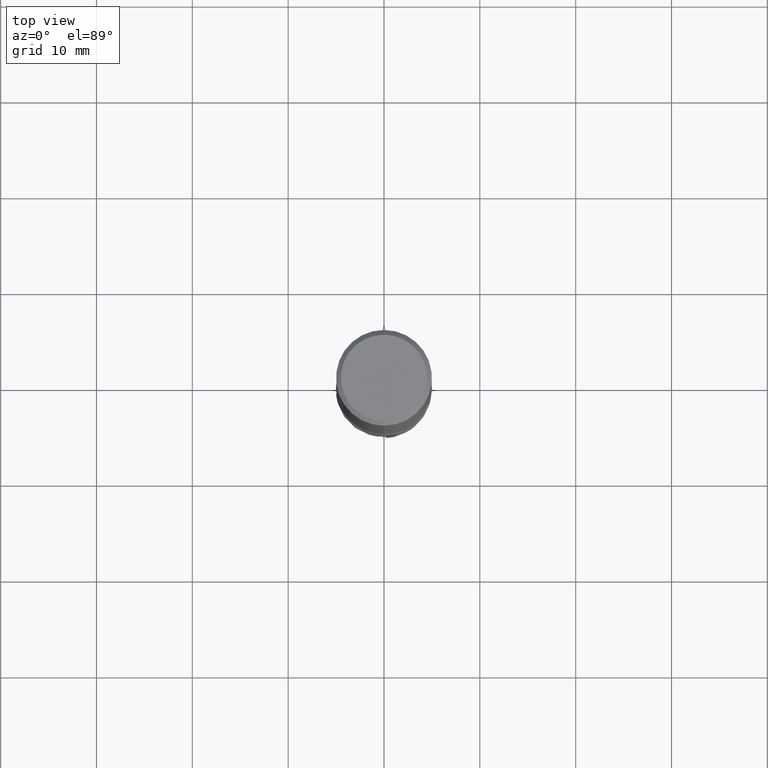
[diagram: clean part render]
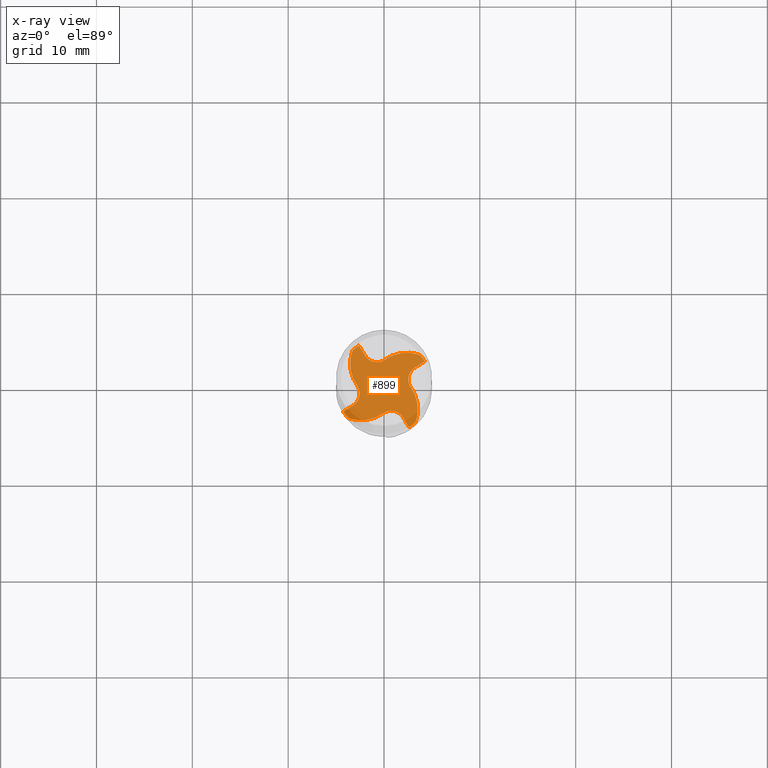
[diagram: x-ray — body ghosted, one internal face saturated and labeled with its STEP entity id]
A machine part, top view, then the same camera in x-ray: the body is ghosted and one INTERNAL B-rep face — a face not visible from any outside direction — is saturated and labeled: STEP entity #899.
In plain terms, the highlighted planar face has unit normal (-0, 0, 1).
Its self-contained STEP definition (entity closure, byte-faithful):
#543=EDGE_CURVE('',#1087,#635,#1578,.T.);
#577=VERTEX_POINT('',#1614);
#617=VERTEX_POINT('',#1659);
#627=EDGE_CURVE('',#1249,#827,#1669,.T.);
#635=VERTEX_POINT('',#1678);
#641=EDGE_CURVE('',#617,#1359,#1684,.T.);
#663=EDGE_CURVE('',#983,#1511,#1709,.T.);
#673=EDGE_CURVE('',#1009,#823,#1720,.T.);
#727=VERTEX_POINT('',#1779);
#733=EDGE_CURVE('',#743,#957,#1785,.T.);
#743=VERTEX_POINT('',#1796);
#767=VERTEX_POINT('',#1821);
#777=EDGE_CURVE('',#635,#1065,#1831,.T.);
#823=VERTEX_POINT('',#1883);
#827=VERTEX_POINT('',#1888);
#899=ADVANCED_FACE('',(#1964),#1965,.T.);
#915=EDGE_CURVE('',#577,#767,#1982,.T.);
#921=EDGE_CURVE('',#945,#1453,#1988,.T.);
#945=VERTEX_POINT('',#2013);
#957=VERTEX_POINT('',#2025);
#983=VERTEX_POINT('',#2054);
#1005=EDGE_CURVE('',#1453,#617,#2077,.T.);
#1009=VERTEX_POINT('',#2081);
#1053=VERTEX_POINT('',#2131);
#1065=VERTEX_POINT('',#2144);
#1067=EDGE_CURVE('',#823,#1143,#2146,.T.);
#1077=VERTEX_POINT('',#2157);
#1087=VERTEX_POINT('',#2167);
#1101=EDGE_CURVE('',#1511,#1295,#2184,.T.);
#1113=EDGE_CURVE('',#1197,#1399,#2198,.T.);
#1117=EDGE_CURVE('',#1077,#1227,#2202,.T.);
#1127=EDGE_CURVE('',#743,#1469,#2213,.T.);
#1135=EDGE_CURVE('',#1467,#945,#2222,.T.);
#1143=VERTEX_POINT('',#2231);
#1169=EDGE_CURVE('',#1053,#1009,#2260,.T.);
#1197=VERTEX_POINT('',#2289);
#1201=EDGE_CURVE('',#827,#1197,#2293,.T.);
#1227=VERTEX_POINT('',#2323);
#1249=VERTEX_POINT('',#2346);
#1295=VERTEX_POINT('',#2399);
#1297=EDGE_CURVE('',#1359,#1077,#2401,.T.);
#1359=VERTEX_POINT('',#2469);
#1399=VERTEX_POINT('',#2515);
#1401=EDGE_CURVE('',#1249,#1295,#2517,.T.);
#1427=EDGE_CURVE('',#1399,#1479,#2547,.T.);
#1435=EDGE_CURVE('',#1467,#767,#2555,.T.);
#1453=VERTEX_POINT('',#2575);
#1467=VERTEX_POINT('',#2589);
#1469=VERTEX_POINT('',#2591);
#1479=VERTEX_POINT('',#2602);
#1495=EDGE_CURVE('',#1053,#1227,#2619,.T.);
#1497=EDGE_CURVE('',#957,#1087,#2621,.T.);
#1511=VERTEX_POINT('',#2636);
#1521=EDGE_CURVE('',#1065,#577,#2646,.T.);
#1539=EDGE_CURVE('',#1479,#727,#2666,.T.);
#1547=EDGE_CURVE('',#1143,#983,#2675,.T.);
#1549=EDGE_CURVE('',#727,#1469,#2677,.T.);
#1578=B_SPLINE_CURVE_WITH_KNOTS('',3,(#2746,#2747,#2748,#2749,#2750,#2751,#2752,#2753),.UNSPECIFIED.,.F.,.F.,(4,2,2,4),(0.0,1.55395800995068,2.99564373161454,4.43728701716914),.UNSPECIFIED.);
#1614=CARTESIAN_POINT('',(3.21236791552506,1.96059927409611,-53.0));
#1659=CARTESIAN_POINT('',(-0.00705434222565904,2.73875652295535,-53.0));
#1669=B_SPLINE_CURVE_WITH_KNOTS('',3,(#3777,#3778,#3779,#3780,#3781,#3782,#3783,#3784),.UNSPECIFIED.,.F.,.F.,(4,2,2,4),(0.0,1.55395800995068,2.99564373161454,4.43728701716914),.UNSPECIFIED.);
#1678=CARTESIAN_POINT('',(2.73875652295535,0.00705434222565993,-53.0));
#1684=B_SPLINE_CURVE_WITH_KNOTS('',3,(#3843,#3844,#3845,#3846,#3847,#3848),.UNSPECIFIED.,.F.,.F.,(4,2,4),(0.0,0.00794720610496246,0.0149642889753079),.UNSPECIFIED.);
#1709=B_SPLINE_CURVE_WITH_KNOTS('',3,(#4196,#4197,#4198,#4199,#4200,#4201,#4202,#4203,#4204,#4205),.UNSPECIFIED.,.F.,.F.,(4,2,2,2,4),(0.0,0.561652873009568,1.12329456949985,1.68488858534868,2.24664184924053),.UNSPECIFIED.);
#1720=B_SPLINE_CURVE_WITH_KNOTS('',3,(#4220,#4221,#4222,#4223,#4224,#4225,#4226,#4227),.UNSPECIFIED.,.F.,.F.,(4,2,2,4),(0.0,1.55395800995072,2.99564373161464,4.43728701716926),.UNSPECIFIED.);
#1779=CARTESIAN_POINT('',(1.96059927409612,-3.21236791552506,-53.0));
#1785=B_SPLINE_CURVE_WITH_KNOTS('',3,(#5132,#5133,#5134,#5135,#5136,#5137,#5138,#5139),.UNSPECIFIED.,.F.,.F.,(4,2,2,4),(0.0,1.55395800995068,2.99564373161454,4.43728701716914),.UNSPECIFIED.);
#1796=CARTESIAN_POINT('',(3.2679776335851,-3.78408802703998,-53.0));
#1821=CARTESIAN_POINT('',(4.26300903754209,2.61261439095677,-53.0));
#1831=B_SPLINE_CURVE_WITH_KNOTS('',3,(#5258,#5259,#5260,#5261,#5262,#5263),.UNSPECIFIED.,.F.,.F.,(4,2,4),(0.0,0.00731125533487543,0.014622524768328),.UNSPECIFIED.);
#1883=CARTESIAN_POINT('',(-3.51485827910795,2.68852362562381,-53.0));
#1888=CARTESIAN_POINT('',(-3.75916761069034,-3.27735574731751,-53.0));
#1964=FACE_OUTER_BOUND('',#6266,.T.);
#1965=PLANE('',#6267);
#1982=B_SPLINE_CURVE_WITH_KNOTS('',3,(#6309,#6310,#6311,#6312,#6313,#6314),.UNSPECIFIED.,.F.,.F.,(4,2,4),(0.0,0.718749972684841,1.43749994537414),.UNSPECIFIED.);
#1988=B_SPLINE_CURVE_WITH_KNOTS('',3,(#6363,#6364,#6365,#6366,#6367,#6368,#6369,#6370),.UNSPECIFIED.,.F.,.F.,(4,2,2,4),(0.0,1.55395800995067,2.9956437316145,4.43728701716911),.UNSPECIFIED.);
#2013=CARTESIAN_POINT('',(3.75916761069033,3.27735574731752,-53.0));
#2025=CARTESIAN_POINT('',(3.27735574731751,-3.75916761069033,-53.0));
#2054=CARTESIAN_POINT('',(-2.73326060225743,-0.00700924184387275,-53.0));
#2077=B_SPLINE_CURVE_WITH_KNOTS('',3,(#6919,#6920,#6921,#6922,#6923,#6924,#6925,#6926),.UNSPECIFIED.,.F.,.F.,(4,2,2,4),(0.0,1.55395800995067,2.9956437316145,4.43728701716911),.UNSPECIFIED.);
#2081=CARTESIAN_POINT('',(-3.27735574731752,3.75916761069031,-53.0));
#2131=CARTESIAN_POINT('',(-3.26797763358509,3.78408802703999,-53.0));
#2144=CARTESIAN_POINT('',(2.73326060225743,0.00700924184387386,-53.0));
#2146=B_SPLINE_CURVE_WITH_KNOTS('',3,(#7376,#7377,#7378,#7379,#7380,#7381,#7382,#7383),.UNSPECIFIED.,.F.,.F.,(4,2,2,4),(0.0,1.55395800995072,2.99564373161464,4.43728701716926),.UNSPECIFIED.);
#2157=CARTESIAN_POINT('',(-1.96059927409612,3.21236791552506,-53.0));
#2167=CARTESIAN_POINT('',(3.51485827910795,-2.68852362562367,-53.0));
#2184=B_SPLINE_CURVE_WITH_KNOTS('',3,(#7711,#7712,#7713,#7714,#7715,#7716),.UNSPECIFIED.,.F.,.F.,(4,2,4),(0.0,0.718749972684841,1.43749994537414),.UNSPECIFIED.);
#2198=B_SPLINE_CURVE_WITH_KNOTS('',3,(#7735,#7736,#7737,#7738,#7739,#7740,#7741,#7742),.UNSPECIFIED.,.F.,.F.,(4,2,2,4),(0.0,1.55395800995068,2.99564373161454,4.43728701716914),.UNSPECIFIED.);
#2202=B_SPLINE_CURVE_WITH_KNOTS('',3,(#7747,#7748,#7749,#7750,#7751,#7752),.UNSPECIFIED.,.F.,.F.,(4,2,4),(0.0,0.718749972684841,1.43749994537414),.UNSPECIFIED.);
#2213=CIRCLE('',#7765,4.9999);
#2222=B_SPLINE_CURVE_WITH_KNOTS('',3,(#7793,#7794,#7795,#7796,#7797,#7798,#7799,#7800),.UNSPECIFIED.,.F.,.F.,(4,2,2,4),(0.0,1.55395800995067,2.9956437316145,4.43728701716911),.UNSPECIFIED.);
#2231=CARTESIAN_POINT('',(-2.73875652295535,-0.00705434222565993,-53.0));
#2260=B_SPLINE_CURVE_WITH_KNOTS('',3,(#7868,#7869,#7870,#7871,#7872,#7873,#7874,#7875),.UNSPECIFIED.,.F.,.F.,(4,2,2,4),(0.0,1.55395800995072,2.99564373161464,4.43728701716926),.UNSPECIFIED.);
#2289=CARTESIAN_POINT('',(-2.68852362562315,-3.514858279108,-53.0));
#2293=B_SPLINE_CURVE_WITH_KNOTS('',3,(#8073,#8074,#8075,#8076,#8077,#8078,#8079,#8080),.UNSPECIFIED.,.F.,.F.,(4,2,2,4),(0.0,1.55395800995068,2.99564373161454,4.43728701716914),.UNSPECIFIED.);
#2323=CARTESIAN_POINT('',(-2.61261439095677,4.26300903754209,-53.0));
#2346=CARTESIAN_POINT('',(-3.78408802703998,-3.2679776335851,-53.0));
#2399=CARTESIAN_POINT('',(-4.2630090375421,-2.61261439095677,-53.0));
#2401=B_SPLINE_CURVE_WITH_KNOTS('',3,(#8942,#8943,#8944,#8945,#8946,#8947,#8948,#8949,#8950,#8951),.UNSPECIFIED.,.F.,.F.,(4,2,2,2,4),(0.0,0.561652843200112,1.12329462075066,1.68488878012172,2.24805447274018),.UNSPECIFIED.);
#2469=CARTESIAN_POINT('',(-0.00700924184387308,2.73326060225744,-53.0));
#2515=CARTESIAN_POINT('',(0.00705434222565993,-2.73875652295535,-53.0));
#2517=CIRCLE('',#9727,4.9999);
#2547=B_SPLINE_CURVE_WITH_KNOTS('',3,(#10628,#10629,#10630,#10631,#10632,#10633),.UNSPECIFIED.,.F.,.F.,(4,2,4),(0.0,0.00731123272665723,0.0146225932187618),.UNSPECIFIED.);
#2555=CIRCLE('',#10696,4.9999);
#2575=CARTESIAN_POINT('',(2.68852362562028,3.51485827910822,-53.0));
#2589=CARTESIAN_POINT('',(3.78408802703999,3.26797763358509,-53.0));
#2591=CARTESIAN_POINT('',(2.61261439095677,-4.2630090375421,-53.0));
#2602=CARTESIAN_POINT('',(0.00700924184387342,-2.73326060225743,-53.0));
#2619=CIRCLE('',#10858,4.9999);
#2621=B_SPLINE_CURVE_WITH_KNOTS('',3,(#10861,#10862,#10863,#10864,#10865,#10866,#10867,#10868),.UNSPECIFIED.,.F.,.F.,(4,2,2,4),(0.0,1.55395800995068,2.99564373161454,4.43728701716914),.UNSPECIFIED.);
#2636=CARTESIAN_POINT('',(-3.21236791552506,-1.96059927409612,-53.0));
#2646=B_SPLINE_CURVE_WITH_KNOTS('',3,(#10968,#10969,#10970,#10971,#10972,#10973,#10974,#10975,#10976,#10977),.UNSPECIFIED.,.F.,.F.,(4,2,2,2,4),(0.0,0.561652873009415,1.12329456950014,1.6848885853497,2.24664185665878),.UNSPECIFIED.);
#2666=B_SPLINE_CURVE_WITH_KNOTS('',3,(#11061,#11062,#11063,#11064,#11065,#11066,#11067,#11068,#11069,#11070),.UNSPECIFIED.,.F.,.F.,(4,2,2,2,4),(0.0,0.561652873009511,1.12329456950017,1.68488858534957,2.24664185425884),.UNSPECIFIED.);
#2675=B_SPLINE_CURVE_WITH_KNOTS('',3,(#11096,#11097,#11098,#11099,#11100,#11101),.UNSPECIFIED.,.F.,.F.,(4,2,4),(0.0,0.0073113960086642,0.0146229443438771),.UNSPECIFIED.);
#2677=B_SPLINE_CURVE_WITH_KNOTS('',3,(#11104,#11105,#11106,#11107,#11108,#11109),.UNSPECIFIED.,.F.,.F.,(4,2,4),(0.0,0.718749972684842,1.43749994537414),.UNSPECIFIED.);
#2746=CARTESIAN_POINT('',(3.09328565480652,-4.17795578713016,-53.0));
#2747=CARTESIAN_POINT('',(3.32863304226522,-3.71652203581956,-53.0));
#2748=CARTESIAN_POINT('',(3.47160343900252,-3.21353291675499,-53.0));
#2749=CARTESIAN_POINT('',(3.55361305107734,-2.21835913436387,-53.0));
#2750=CARTESIAN_POINT('',(3.50596477395292,-1.73621024299965,-53.0));
#2751=CARTESIAN_POINT('',(3.24106465959036,-0.812328196172821,-53.0));
#2752=CARTESIAN_POINT('',(3.02599776105415,-0.378196692979854,-53.0));
#2753=CARTESIAN_POINT('',(2.73875652295535,0.00705434222566381,-53.0));
#3777=CARTESIAN_POINT('',(-4.17795578713016,-3.09328565480652,-53.0));
#3778=CARTESIAN_POINT('',(-3.71652203581956,-3.32863304226522,-53.0));
#3779=CARTESIAN_POINT('',(-3.21353291675499,-3.47160343900252,-53.0));
#3780=CARTESIAN_POINT('',(-2.21835913436387,-3.55361305107734,-53.0));
#3781=CARTESIAN_POINT('',(-1.73621024299965,-3.50596477395292,-53.0));
#3782=CARTESIAN_POINT('',(-0.812328196172821,-3.24106465959036,-53.0));
#3783=CARTESIAN_POINT('',(-0.378196692979854,-3.02599776105415,-53.0));
#3784=CARTESIAN_POINT('',(0.00705434222566381,-2.73875652295535,-53.0));
#3843=CARTESIAN_POINT('',(-0.00705434233064239,2.73875652295476,-52.9999999999004));
#3844=CARTESIAN_POINT('',(-0.00703260408063118,2.73610754344662,-52.9999999999004));
#3845=CARTESIAN_POINT('',(-0.00701086643974124,2.73345858833782,-52.9999999999004));
#3846=CARTESIAN_POINT('',(-0.00696993605271768,2.72847070589869,-52.9999999999004));
#3847=CARTESIAN_POINT('',(-0.0069468369007759,2.72565574487025,-53.0));
#3848=CARTESIAN_POINT('',(-0.00692391849234675,2.72286274347792,-53.0));
#4196=CARTESIAN_POINT('',(-2.73930492009428,0.00311115264046641,-53.0));
#4197=CARTESIAN_POINT('',(-2.64265037635078,-0.157227046289006,-53.0));
#4198=CARTESIAN_POINT('',(-2.57823701126731,-0.334911959245153,-53.0));
#4199=CARTESIAN_POINT('',(-2.52114648856455,-0.704965462275667,-53.0));
#4200=CARTESIAN_POINT('',(-2.52901348019747,-0.893797448199707,-53.0));
#4201=CARTESIAN_POINT('',(-2.61668761863336,-1.25779902745857,-53.0));
#4202=CARTESIAN_POINT('',(-2.69565059423472,-1.42949010858479,-53.0));
#4203=CARTESIAN_POINT('',(-2.91498031582104,-1.73297948899149,-53.0));
#4204=CARTESIAN_POINT('',(-3.05326538237736,-1.86186180967467,-53.0));
#4205=CARTESIAN_POINT('',(-3.21236791552506,-1.96059927409612,-53.0));
#4220=CARTESIAN_POINT('',(-3.09328565480652,4.17795578713016,-53.0));
#4221=CARTESIAN_POINT('',(-3.32863304226522,3.71652203581955,-53.0));
#4222=CARTESIAN_POINT('',(-3.47160343900252,3.21353291675498,-53.0));
#4223=CARTESIAN_POINT('',(-3.55361305107733,2.21835913436387,-53.0));
#4224=CARTESIAN_POINT('',(-3.50596477395292,1.73621024299966,-53.0));
#4225=CARTESIAN_POINT('',(-3.24106465959036,0.812328196172827,-53.0));
#4226=CARTESIAN_POINT('',(-3.02599776105416,0.378196692979864,-53.0));
#4227=CARTESIAN_POINT('',(-2.73875652295535,-0.00705434222566426,-53.0));
#5132=CARTESIAN_POINT('',(3.09328565480652,-4.17795578713016,-53.0));
#5133=CARTESIAN_POINT('',(3.32863304226522,-3.71652203581956,-53.0));
#5134=CARTESIAN_POINT('',(3.47160343900252,-3.21353291675499,-53.0));
#5135=CARTESIAN_POINT('',(3.55361305107734,-2.21835913436387,-53.0));
#5136=CARTESIAN_POINT('',(3.50596477395292,-1.73621024299965,-53.0));
#5137=CARTESIAN_POINT('',(3.24106465959036,-0.812328196172821,-53.0));
#5138=CARTESIAN_POINT('',(3.02599776105415,-0.378196692979854,-53.0));
#5139=CARTESIAN_POINT('',(2.73875652295535,0.00705434222566381,-53.0));
#5258=CARTESIAN_POINT('',(2.73875652295487,0.00705434228479063,-53.0));
#5259=CARTESIAN_POINT('',(2.73631951989932,0.00703434357153945,-53.0));
#5260=CARTESIAN_POINT('',(2.73388252190082,0.00701434524585892,-53.0));
#5261=CARTESIAN_POINT('',(2.72900852120078,0.0069743492480423,-53.0));
#5262=CARTESIAN_POINT('',(2.72657152301573,0.00695435161297081,-53.0));
#5263=CARTESIAN_POINT('',(2.72413452482911,0.00693435432395562,-53.0));
#6266=EDGE_LOOP('',(#11512,#11513,#11514,#11515,#11516,#11517,#11518,#11519,#11520,#11521,#11522,#11523,#11524,#11525,#11526,#11527,#11528,#11529,#11530,#11531,#11532,#11533,#11534,#11535,#11536,#11537,#11538,#11539));
#6267=AXIS2_PLACEMENT_3D('',#11540,#11541,#11542);
#6309=CARTESIAN_POINT('',(3.21236791547233,1.96059927418108,-53.0));
#6310=CARTESIAN_POINT('',(3.41593660679313,2.08693199821651,-53.0));
#6311=CARTESIAN_POINT('',(3.61950541979492,2.21326452617912,-53.0));
#6312=CARTESIAN_POINT('',(4.02664328916154,2.46592918995726,-53.0));
#6313=CARTESIAN_POINT('',(4.23021234552656,2.59226132577292,-53.0));
#6314=CARTESIAN_POINT('',(4.43378152357256,2.71859326551367,-53.0));
#6363=CARTESIAN_POINT('',(4.17795578713016,3.09328565480652,-53.0));
#6364=CARTESIAN_POINT('',(3.71652203581956,3.32863304226521,-53.0));
#6365=CARTESIAN_POINT('',(3.21353291675499,3.47160343900252,-53.0));
#6366=CARTESIAN_POINT('',(2.21835913436387,3.55361305107734,-53.0));
#6367=CARTESIAN_POINT('',(1.73621024299965,3.50596477395292,-53.0));
#6368=CARTESIAN_POINT('',(0.812328196172809,3.24106465959036,-53.0));
#6369=CARTESIAN_POINT('',(0.378196692979836,3.02599776105413,-53.0));
#6370=CARTESIAN_POINT('',(-0.00705434222565904,2.73875652295535,-53.0));
#6919=CARTESIAN_POINT('',(4.17795578713016,3.09328565480652,-53.0));
#6920=CARTESIAN_POINT('',(3.71652203581956,3.32863304226521,-53.0));
#6921=CARTESIAN_POINT('',(3.21353291675499,3.47160343900252,-53.0));
#6922=CARTESIAN_POINT('',(2.21835913436387,3.55361305107734,-53.0));
#6923=CARTESIAN_POINT('',(1.73621024299965,3.50596477395292,-53.0));
#6924=CARTESIAN_POINT('',(0.812328196172809,3.24106465959036,-53.0));
#6925=CARTESIAN_POINT('',(0.378196692979836,3.02599776105413,-53.0));
#6926=CARTESIAN_POINT('',(-0.00705434222565904,2.73875652295535,-53.0));
#7376=CARTESIAN_POINT('',(-3.09328565480652,4.17795578713016,-53.0));
#7377=CARTESIAN_POINT('',(-3.32863304226522,3.71652203581955,-53.0));
#7378=CARTESIAN_POINT('',(-3.47160343900252,3.21353291675498,-53.0));
#7379=CARTESIAN_POINT('',(-3.55361305107733,2.21835913436387,-53.0));
#7380=CARTESIAN_POINT('',(-3.50596477395292,1.73621024299966,-53.0));
#7381=CARTESIAN_POINT('',(-3.24106465959036,0.812328196172827,-53.0));
#7382=CARTESIAN_POINT('',(-3.02599776105416,0.378196692979864,-53.0));
#7383=CARTESIAN_POINT('',(-2.73875652295535,-0.00705434222566426,-53.0));
#7711=CARTESIAN_POINT('',(-3.21236791547233,-1.96059927418109,-53.0));
#7712=CARTESIAN_POINT('',(-3.41593660679313,-2.08693199821651,-53.0));
#7713=CARTESIAN_POINT('',(-3.61950541979492,-2.21326452617912,-53.0));
#7714=CARTESIAN_POINT('',(-4.02664328916154,-2.46592918995726,-53.0));
#7715=CARTESIAN_POINT('',(-4.23021234552656,-2.59226132577292,-53.0));
#7716=CARTESIAN_POINT('',(-4.43378152357256,-2.71859326551368,-53.0));
#7735=CARTESIAN_POINT('',(-4.17795578713016,-3.09328565480652,-53.0));
#7736=CARTESIAN_POINT('',(-3.71652203581956,-3.32863304226522,-53.0));
#7737=CARTESIAN_POINT('',(-3.21353291675499,-3.47160343900252,-53.0));
#7738=CARTESIAN_POINT('',(-2.21835913436387,-3.55361305107734,-53.0));
#7739=CARTESIAN_POINT('',(-1.73621024299965,-3.50596477395292,-53.0));
#7740=CARTESIAN_POINT('',(-0.812328196172821,-3.24106465959036,-53.0));
#7741=CARTESIAN_POINT('',(-0.378196692979854,-3.02599776105415,-53.0));
#7742=CARTESIAN_POINT('',(0.00705434222566381,-2.73875652295535,-53.0));
#7747=CARTESIAN_POINT('',(-1.96059927418109,3.21236791547233,-53.0));
#7748=CARTESIAN_POINT('',(-2.08693199821651,3.41593660679313,-53.0));
#7749=CARTESIAN_POINT('',(-2.21326452617912,3.61950541979492,-53.0));
#7750=CARTESIAN_POINT('',(-2.46592918995726,4.02664328916154,-53.0));
#7751=CARTESIAN_POINT('',(-2.59226132577292,4.23021234552656,-53.0));
#7752=CARTESIAN_POINT('',(-2.71859326551368,4.43378152357256,-53.0));
#7765=AXIS2_PLACEMENT_3D('',#11769,#11770,#11771);
#7793=CARTESIAN_POINT('',(4.17795578713016,3.09328565480652,-53.0));
#7794=CARTESIAN_POINT('',(3.71652203581956,3.32863304226521,-53.0));
#7795=CARTESIAN_POINT('',(3.21353291675499,3.47160343900252,-53.0));
#7796=CARTESIAN_POINT('',(2.21835913436387,3.55361305107734,-53.0));
#7797=CARTESIAN_POINT('',(1.73621024299965,3.50596477395292,-53.0));
#7798=CARTESIAN_POINT('',(0.812328196172809,3.24106465959036,-53.0));
#7799=CARTESIAN_POINT('',(0.378196692979836,3.02599776105413,-53.0));
#7800=CARTESIAN_POINT('',(-0.00705434222565904,2.73875652295535,-53.0));
#7868=CARTESIAN_POINT('',(-3.09328565480652,4.17795578713016,-53.0));
#7869=CARTESIAN_POINT('',(-3.32863304226522,3.71652203581955,-53.0));
#7870=CARTESIAN_POINT('',(-3.47160343900252,3.21353291675498,-53.0));
#7871=CARTESIAN_POINT('',(-3.55361305107733,2.21835913436387,-53.0));
#7872=CARTESIAN_POINT('',(-3.50596477395292,1.73621024299966,-53.0));
#7873=CARTESIAN_POINT('',(-3.24106465959036,0.812328196172827,-53.0));
#7874=CARTESIAN_POINT('',(-3.02599776105416,0.378196692979864,-53.0));
#7875=CARTESIAN_POINT('',(-2.73875652295535,-0.00705434222566426,-53.0));
#8073=CARTESIAN_POINT('',(-4.17795578713016,-3.09328565480652,-53.0));
#8074=CARTESIAN_POINT('',(-3.71652203581956,-3.32863304226522,-53.0));
#8075=CARTESIAN_POINT('',(-3.21353291675499,-3.47160343900252,-53.0));
#8076=CARTESIAN_POINT('',(-2.21835913436387,-3.55361305107734,-53.0));
#8077=CARTESIAN_POINT('',(-1.73621024299965,-3.50596477395292,-53.0));
#8078=CARTESIAN_POINT('',(-0.812328196172821,-3.24106465959036,-53.0));
#8079=CARTESIAN_POINT('',(-0.378196692979854,-3.02599776105415,-53.0));
#8080=CARTESIAN_POINT('',(0.00705434222566381,-2.73875652295535,-53.0));
#8942=CARTESIAN_POINT('',(0.00430927868239661,2.74002796567315,-53.0));
#8943=CARTESIAN_POINT('',(-0.155934760469763,2.6432174132636,-53.0));
#8944=CARTESIAN_POINT('',(-0.333556886075702,2.57863113939693,-53.0));
#8945=CARTESIAN_POINT('',(-0.703554662992393,2.52118045115068,-53.0));
#8946=CARTESIAN_POINT('',(-0.892394246213419,2.52886364183619,-53.0));
#8947=CARTESIAN_POINT('',(-1.25648106674695,2.61618344929279,-53.0));
#8948=CARTESIAN_POINT('',(-1.4282489732101,2.6949792897424,-53.0));
#8949=CARTESIAN_POINT('',(-1.73233359642235,2.91428892923695,-53.0));
#8950=CARTESIAN_POINT('',(-1.86161355224002,3.05286534793291,-53.0));
#8951=CARTESIAN_POINT('',(-1.96059927409612,3.21236791552506,-53.0));
#9727=AXIS2_PLACEMENT_3D('',#12117,#12118,#12119);
#10628=CARTESIAN_POINT('',(0.0070543422847773,-2.73875652295487,-53.0));
#10629=CARTESIAN_POINT('',(0.00703434363336713,-2.73631952743514,-53.0));
#10630=CARTESIAN_POINT('',(0.00701434527710148,-2.73388252570986,-53.0));
#10631=CARTESIAN_POINT('',(0.00697434890718305,-2.72900847966467,-53.0));
#10632=CARTESIAN_POINT('',(0.00695435144314374,-2.72657150232054,-53.0));
#10633=CARTESIAN_POINT('',(0.00693435432526607,-2.72413452498983,-53.0));
#10696=AXIS2_PLACEMENT_3D('',#12168,#12169,#12170);
#10858=AXIS2_PLACEMENT_3D('',#12221,#12222,#12223);
#10861=CARTESIAN_POINT('',(3.09328565480652,-4.17795578713016,-53.0));
#10862=CARTESIAN_POINT('',(3.32863304226522,-3.71652203581956,-53.0));
#10863=CARTESIAN_POINT('',(3.47160343900252,-3.21353291675499,-53.0));
#10864=CARTESIAN_POINT('',(3.55361305107734,-2.21835913436387,-53.0));
#10865=CARTESIAN_POINT('',(3.50596477395292,-1.73621024299965,-53.0));
#10866=CARTESIAN_POINT('',(3.24106465959036,-0.812328196172821,-53.0));
#10867=CARTESIAN_POINT('',(3.02599776105415,-0.378196692979854,-53.0));
#10868=CARTESIAN_POINT('',(2.73875652295535,0.00705434222566381,-53.0));
#10968=CARTESIAN_POINT('',(2.73930492388835,-0.00311115893437081,-53.0));
#10969=CARTESIAN_POINT('',(2.64265037932531,0.157227039501013,-53.0));
#10970=CARTESIAN_POINT('',(2.57823701333364,0.334911952127867,-53.0));
#10971=CARTESIAN_POINT('',(2.5211464887393,0.704965454866655,-53.0));
#10972=CARTESIAN_POINT('',(2.529013479407,0.893797440831058,-53.0));
#10973=CARTESIAN_POINT('',(2.6166876159823,1.25779902053846,-53.0));
#10974=CARTESIAN_POINT('',(2.69565059070613,1.42949010206858,-53.0));
#10975=CARTESIAN_POINT('',(2.91498031218945,1.73297948560054,-53.0));
#10976=CARTESIAN_POINT('',(3.05326538027659,1.86186180837095,-53.0));
#10977=CARTESIAN_POINT('',(3.21236791552506,1.96059927409611,-53.0));
#11061=CARTESIAN_POINT('',(-0.00311115689798508,-2.73930492266078,-53.0));
#11062=CARTESIAN_POINT('',(0.157227041697274,-2.6426503783629,-53.0));
#11063=CARTESIAN_POINT('',(0.334911954430672,-2.57823701266508,-53.0));
#11064=CARTESIAN_POINT('',(0.70496545726385,-2.52114648868276,-53.0));
#11065=CARTESIAN_POINT('',(0.893797443215186,-2.52901347966276,-53.0));
#11066=CARTESIAN_POINT('',(1.25779902277745,-2.61668761684005,-53.0));
#11067=CARTESIAN_POINT('',(1.42949010417689,-2.6956505918478,-53.0));
#11068=CARTESIAN_POINT('',(1.73297948669767,-2.91498031336444,-53.0));
#11069=CARTESIAN_POINT('',(1.86186180879277,-3.05326538095629,-53.0));
#11070=CARTESIAN_POINT('',(1.96059927409612,-3.21236791552506,-53.0));
#11096=CARTESIAN_POINT('',(-2.73875652295487,-0.00705434228477708,-53.0));
#11097=CARTESIAN_POINT('',(-2.73631947300963,-0.00703434318673635,-53.0));
#11098=CARTESIAN_POINT('',(-2.73388249843301,-0.00701434505327545,-53.0));
#11099=CARTESIAN_POINT('',(-2.72900849853792,-0.00697434906206427,-53.0));
#11100=CARTESIAN_POINT('',(-2.72657151165196,-0.00695435151971938,-53.0));
#11101=CARTESIAN_POINT('',(-2.72413452477132,-0.00693435432347778,-53.0));
#11104=CARTESIAN_POINT('',(1.9605992741811,-3.21236791547232,-53.0));
#11105=CARTESIAN_POINT('',(2.08693199821652,-3.41593660679312,-53.0));
#11106=CARTESIAN_POINT('',(2.21326452617913,-3.61950541979491,-53.0));
#11107=CARTESIAN_POINT('',(2.46592918995727,-4.02664328916153,-53.0));
#11108=CARTESIAN_POINT('',(2.59226132577292,-4.23021234552656,-53.0));
#11109=CARTESIAN_POINT('',(2.71859326551368,-4.43378152357256,-53.0));
#11512=ORIENTED_EDGE('',*,*,#1497,.T.);
#11513=ORIENTED_EDGE('',*,*,#543,.T.);
#11514=ORIENTED_EDGE('',*,*,#777,.T.);
#11515=ORIENTED_EDGE('',*,*,#1521,.T.);
#11516=ORIENTED_EDGE('',*,*,#915,.T.);
#11517=ORIENTED_EDGE('',*,*,#1435,.F.);
#11518=ORIENTED_EDGE('',*,*,#1135,.T.);
#11519=ORIENTED_EDGE('',*,*,#921,.T.);
#11520=ORIENTED_EDGE('',*,*,#1005,.T.);
#11521=ORIENTED_EDGE('',*,*,#641,.T.);
#11522=ORIENTED_EDGE('',*,*,#1297,.T.);
#11523=ORIENTED_EDGE('',*,*,#1117,.T.);
#11524=ORIENTED_EDGE('',*,*,#1495,.F.);
#11525=ORIENTED_EDGE('',*,*,#1169,.T.);
#11526=ORIENTED_EDGE('',*,*,#673,.T.);
#11527=ORIENTED_EDGE('',*,*,#1067,.T.);
#11528=ORIENTED_EDGE('',*,*,#1547,.T.);
#11529=ORIENTED_EDGE('',*,*,#663,.T.);
#11530=ORIENTED_EDGE('',*,*,#1101,.T.);
#11531=ORIENTED_EDGE('',*,*,#1401,.F.);
#11532=ORIENTED_EDGE('',*,*,#627,.T.);
#11533=ORIENTED_EDGE('',*,*,#1201,.T.);
#11534=ORIENTED_EDGE('',*,*,#1113,.T.);
#11535=ORIENTED_EDGE('',*,*,#1427,.T.);
#11536=ORIENTED_EDGE('',*,*,#1539,.T.);
#11537=ORIENTED_EDGE('',*,*,#1549,.T.);
#11538=ORIENTED_EDGE('',*,*,#1127,.F.);
#11539=ORIENTED_EDGE('',*,*,#733,.T.);
#11540=CARTESIAN_POINT('',(0.0,2.49995,-53.0));
#11541=DIRECTION('',(-0.0,0.0,1.0));
#11542=DIRECTION('',(0.0,-1.0,0.0));
#11769=CARTESIAN_POINT('',(0.0,0.0,-53.0));
#11770=DIRECTION('',(0.0,0.0,-1.0));
#11771=DIRECTION('',(0.0,1.0,0.0));
#12117=CARTESIAN_POINT('',(0.0,0.0,-53.0));
#12118=DIRECTION('',(0.0,0.0,-1.0));
#12119=DIRECTION('',(0.0,1.0,0.0));
#12168=CARTESIAN_POINT('',(0.0,0.0,-53.0));
#12169=DIRECTION('',(0.0,0.0,-1.0));
#12170=DIRECTION('',(0.0,1.0,0.0));
#12221=CARTESIAN_POINT('',(0.0,0.0,-53.0));
#12222=DIRECTION('',(0.0,0.0,-1.0));
#12223=DIRECTION('',(0.0,1.0,0.0));